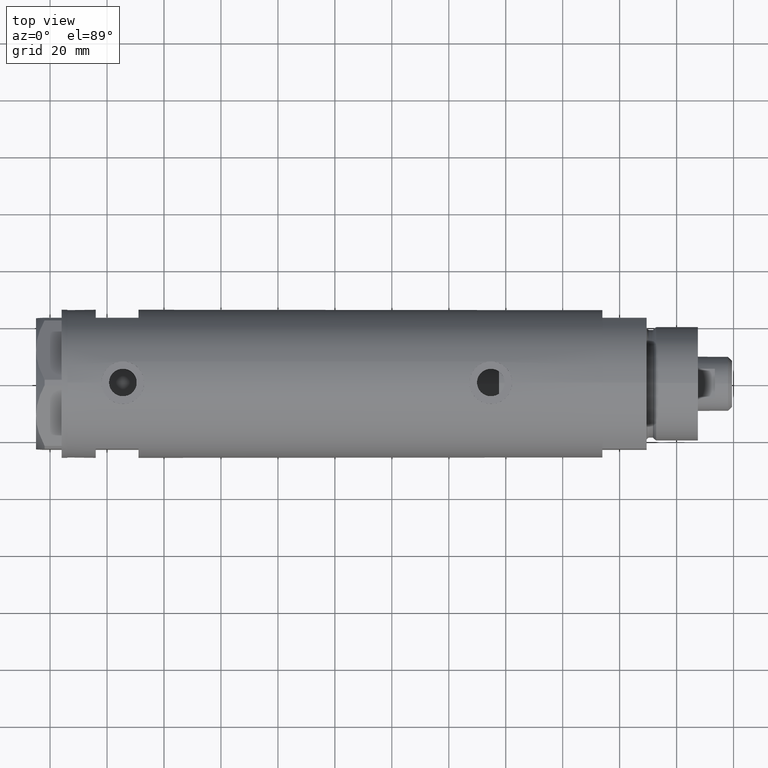
[diagram: clean part render]
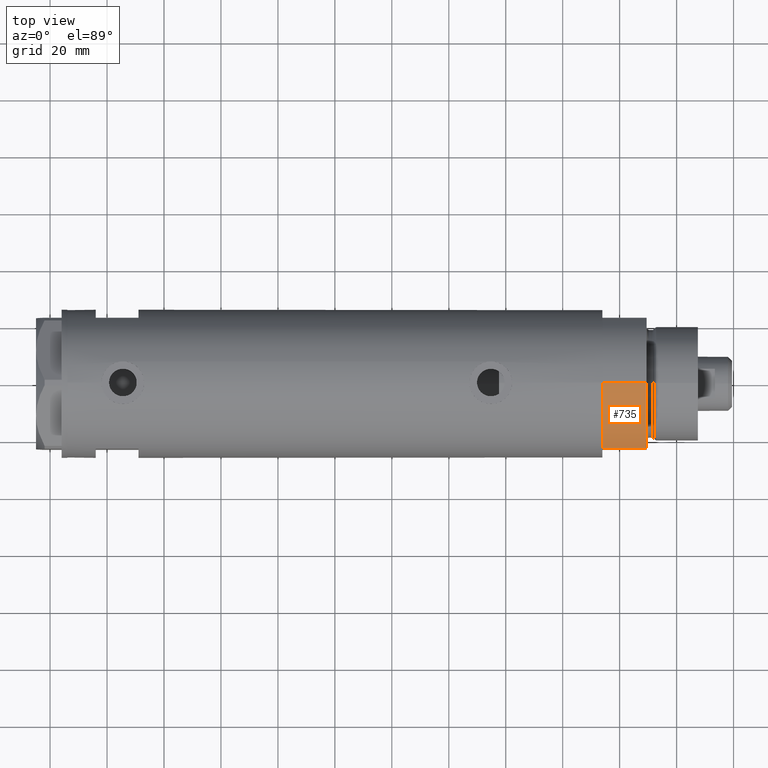
[diagram: same view with one face highlighted and labeled with its STEP entity id]
A machine part, top view. The second image highlights one B-rep face of the part: STEP entity #735.
In plain terms, the highlighted cylindrical surface (partial cylindrical patch) has radius 26 mm, axis along (-1, -0, 0).
Its self-contained STEP definition (entity closure, byte-faithful):
#3 = ORIENTED_EDGE ( 'NONE', *, *, #4106, .T. ) ;
#116 = CARTESIAN_POINT ( 'NONE',  ( 0.000000000000000000, 0.000000000000000000, 0.000000000000000000 ) ) ;
#161 = CARTESIAN_POINT ( 'NONE',  ( -26.00000000000000355, 0.000000000000000000, 15.50000000000000000 ) ) ;
#483 = DIRECTION ( 'NONE',  ( 1.000000000000000000, 0.000000000000000000, 0.000000000000000000 ) ) ;
#592 = ORIENTED_EDGE ( 'NONE', *, *, #4242, .T. ) ;
#735 = ADVANCED_FACE ( 'NONE', ( #1344 ), #2348, .T. ) ;
#737 = EDGE_LOOP ( 'NONE', ( #2283, #3, #2484, #592 ) ) ;
#765 = LINE ( 'NONE', #4459, #1339 ) ;
#844 = CARTESIAN_POINT ( 'NONE',  ( -26.00000000000000355, 0.000000000000000000, 15.50000000000000000 ) ) ;
#1076 = CARTESIAN_POINT ( 'NONE',  ( -12.12435565298215501, -22.99999999999999645, 0.000000000000000000 ) ) ;
#1085 = DIRECTION ( 'NONE',  ( -0.000000000000000000, -0.000000000000000000, 1.000000000000000000 ) ) ;
#1213 = EDGE_CURVE ( 'NONE', #1667, #1377, #3217, .T. ) ;
#1267 = DIRECTION ( 'NONE',  ( 0.000000000000000000, 0.000000000000000000, 1.000000000000000000 ) ) ;
#1269 = DIRECTION ( 'NONE',  ( -1.000000000000000000, 0.000000000000000000, 0.000000000000000000 ) ) ;
#1339 = VECTOR ( 'NONE', #1085, 1000.000000000000000 ) ;
#1344 = FACE_OUTER_BOUND ( 'NONE', #737, .T. ) ;
#1377 = VERTEX_POINT ( 'NONE', #1076 ) ;
#1594 = DIRECTION ( 'NONE',  ( 1.000000000000000000, 0.000000000000000000, 0.000000000000000000 ) ) ;
#1647 = AXIS2_PLACEMENT_3D ( 'NONE', #3470, #2353, #483 ) ;
#1667 = VERTEX_POINT ( 'NONE', #1919 ) ;
#1919 = CARTESIAN_POINT ( 'NONE',  ( -26.00000000000000355, 0.000000000000000000, 0.000000000000000000 ) ) ;
#1976 = CARTESIAN_POINT ( 'NONE',  ( 0.000000000000000000, 0.000000000000000000, 15.50000000000000000 ) ) ;
#2283 = ORIENTED_EDGE ( 'NONE', *, *, #4115, .F. ) ;
#2348 = CYLINDRICAL_SURFACE ( 'NONE', #2583, 26.00000000000000355 ) ;
#2353 = DIRECTION ( 'NONE',  ( 0.000000000000000000, 0.000000000000000000, 1.000000000000000000 ) ) ;
#2484 = ORIENTED_EDGE ( 'NONE', *, *, #1213, .T. ) ;
#2583 = AXIS2_PLACEMENT_3D ( 'NONE', #1976, #4641, #1269 ) ;
#3217 = CIRCLE ( 'NONE', #3921, 26.00000000000000355 ) ;
#3333 = VERTEX_POINT ( 'NONE', #4510 ) ;
#3470 = CARTESIAN_POINT ( 'NONE',  ( 0.000000000000000000, 0.000000000000000000, 15.50000000000000000 ) ) ;
#3708 = VECTOR ( 'NONE', #4602, 1000.000000000000000 ) ;
#3787 = CIRCLE ( 'NONE', #1647, 26.00000000000000355 ) ;
#3921 = AXIS2_PLACEMENT_3D ( 'NONE', #116, #1267, #1594 ) ;
#4106 = EDGE_CURVE ( 'NONE', #4784, #1667, #4218, .T. ) ;
#4115 = EDGE_CURVE ( 'NONE', #4784, #3333, #3787, .T. ) ;
#4218 = LINE ( 'NONE', #844, #3708 ) ;
#4242 = EDGE_CURVE ( 'NONE', #1377, #3333, #765, .T. ) ;
#4459 = CARTESIAN_POINT ( 'NONE',  ( -12.12435565298215145, -22.99999999999999645, 0.000000000000000000 ) ) ;
#4510 = CARTESIAN_POINT ( 'NONE',  ( -12.12435565298215323, -22.99999999999999645, 15.50000000000000000 ) ) ;
#4602 = DIRECTION ( 'NONE',  ( -0.000000000000000000, -0.000000000000000000, -1.000000000000000000 ) ) ;
#4641 = DIRECTION ( 'NONE',  ( -0.000000000000000000, -0.000000000000000000, -1.000000000000000000 ) ) ;
#4784 = VERTEX_POINT ( 'NONE', #161 ) ;